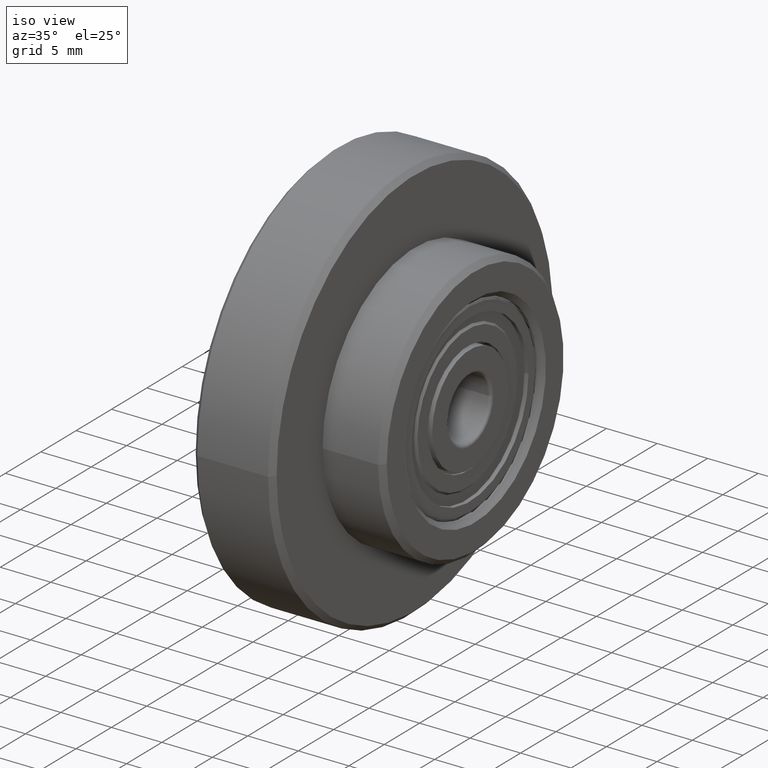
[diagram: clean part render]
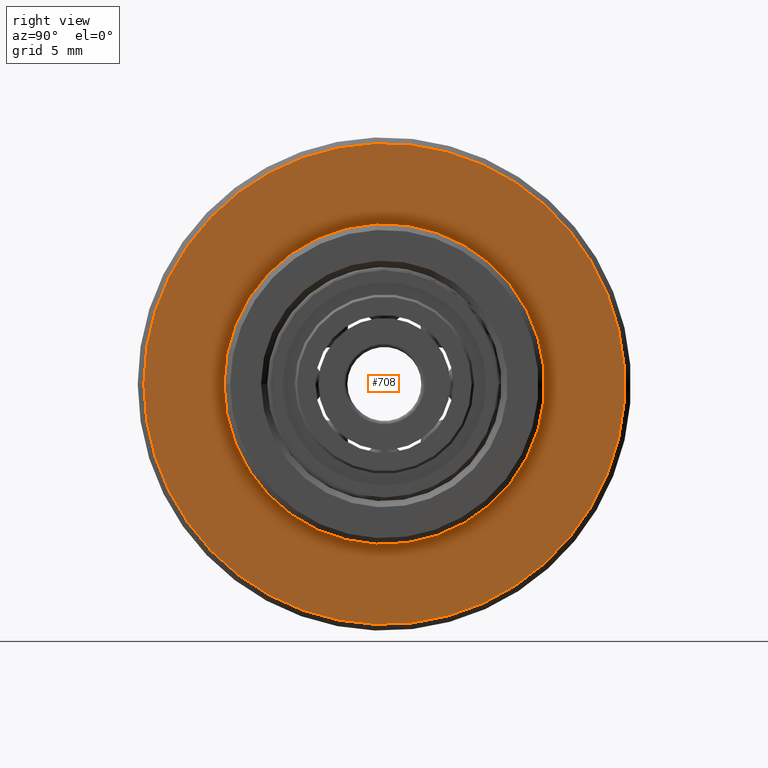
[diagram: tour spotlight — one face highlighted and labeled with its STEP entity id]
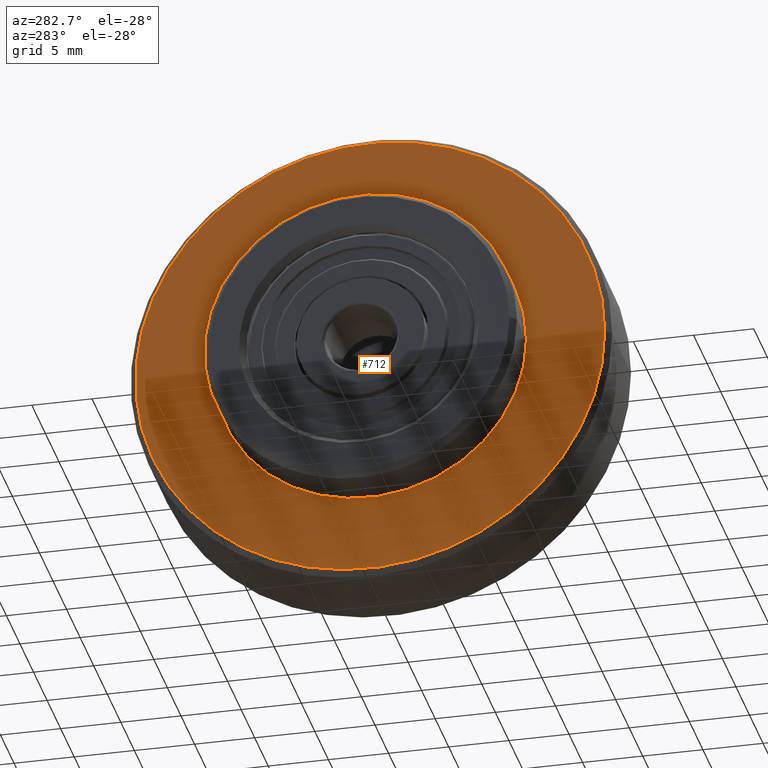
[diagram: tour spotlight — one face highlighted and labeled with its STEP entity id]
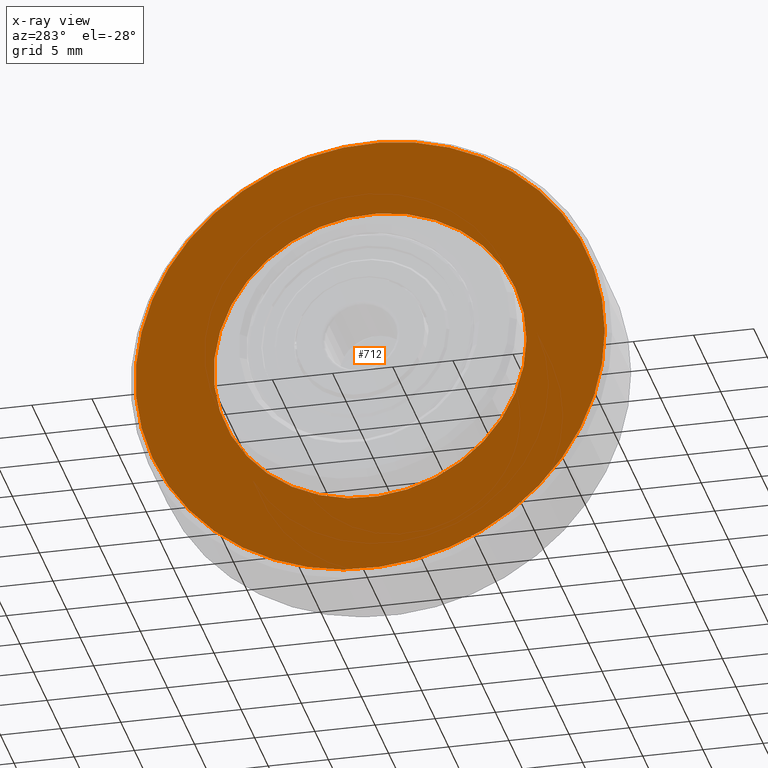
[diagram: x-ray of the same camera — body ghosted, this tour face saturated]
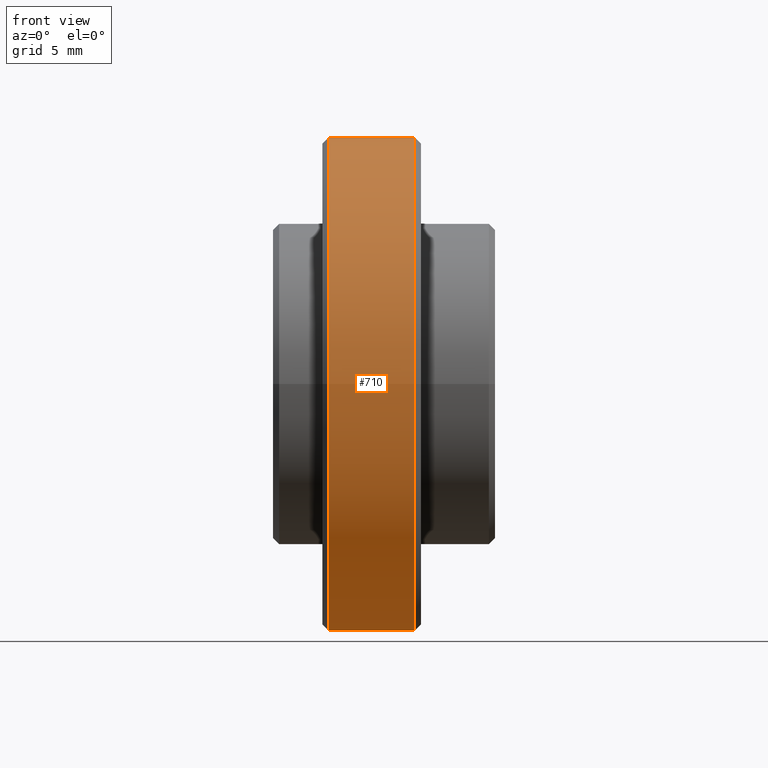
[diagram: tour spotlight — one face highlighted and labeled with its STEP entity id]
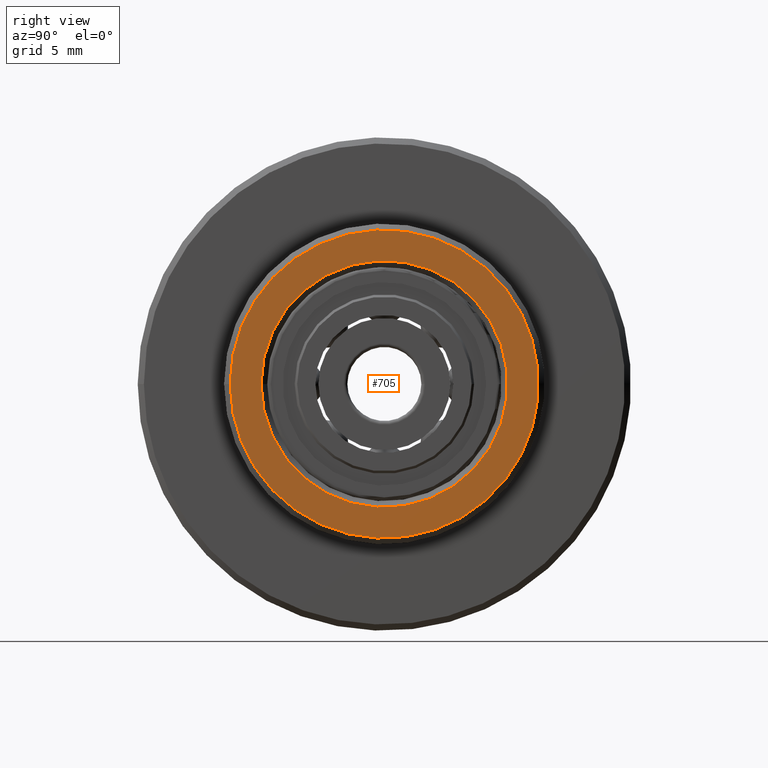
[diagram: tour spotlight — one face highlighted and labeled with its STEP entity id]
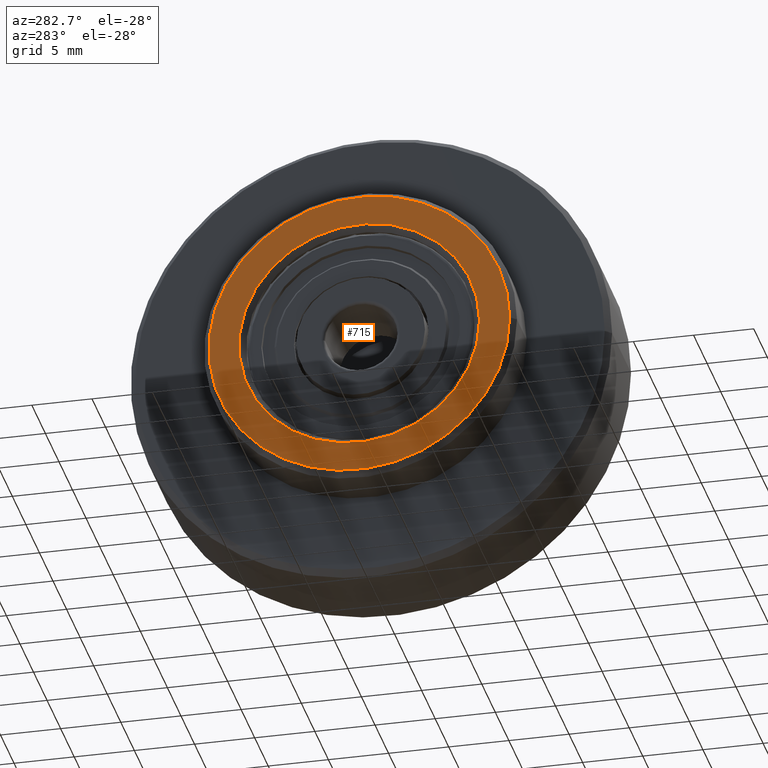
[diagram: tour spotlight — one face highlighted and labeled with its STEP entity id]
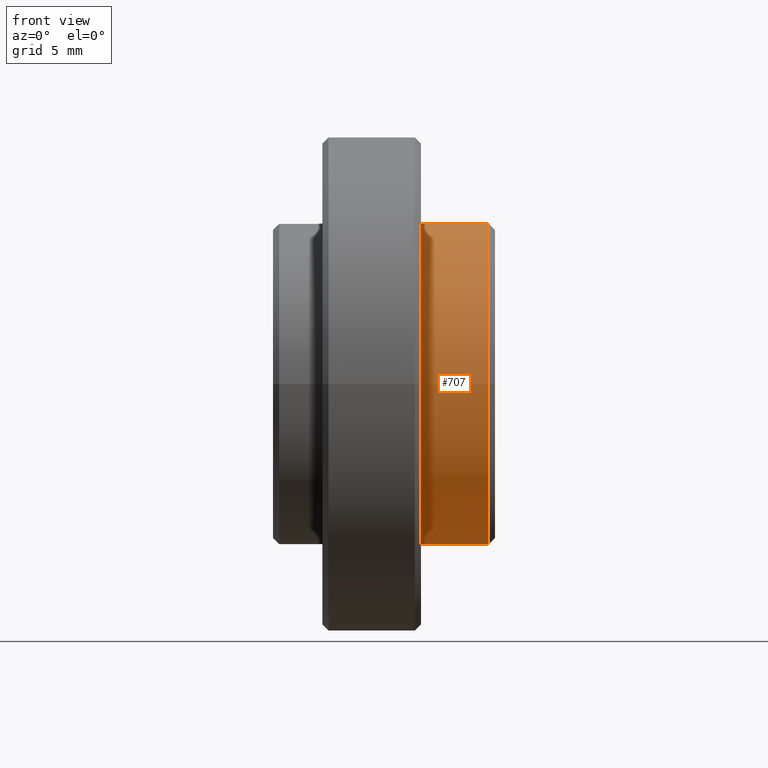
[diagram: tour spotlight — one face highlighted and labeled with its STEP entity id]
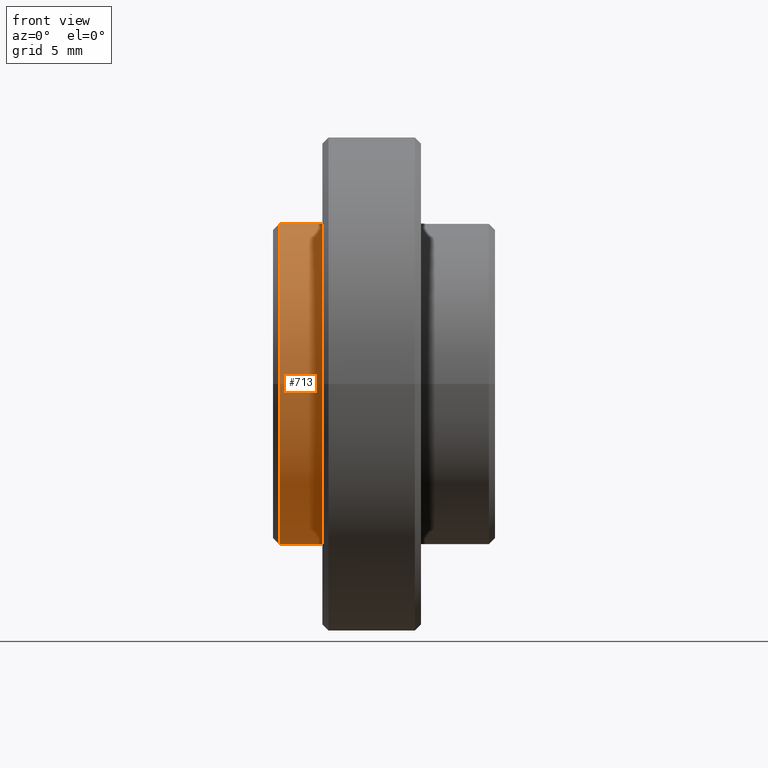
[diagram: tour spotlight — one face highlighted and labeled with its STEP entity id]
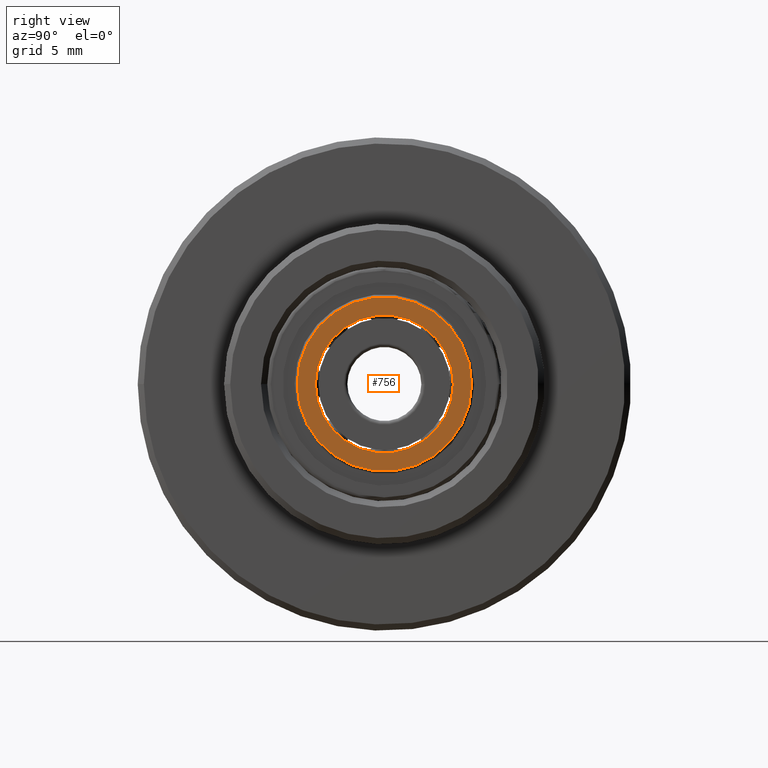
[diagram: tour spotlight — one face highlighted and labeled with its STEP entity id]
A machine part: a face-by-face anatomy tour. The part has 114 B-rep faces; the first image is the clean iso view, then the 8 largest visible faces are spotlighted one at a time (largest first), each with its STEP entity span.

Face 1 — right view, entity #708. In plain terms, the highlighted planar face has unit normal (-1, 0, 0).
Definition (entity closure, byte-faithful):
#104=FACE_BOUND('',#232,.T.);
#168=FACE_OUTER_BOUND('',#231,.T.);
#231=EDGE_LOOP('',(#561));
#232=EDGE_LOOP('',(#562));
#352=CIRCLE('',#806,12.999999999948);
#353=CIRCLE('',#808,19.499999999922);
#418=VERTEX_POINT('',#1223);
#419=VERTEX_POINT('',#1226);
#492=EDGE_CURVE('',#418,#418,#352,.T.);
#493=EDGE_CURVE('',#419,#419,#353,.T.);
#561=ORIENTED_EDGE('',*,*,#493,.T.);
#562=ORIENTED_EDGE('',*,*,#492,.F.);
#688=PLANE('',#807);
#708=ADVANCED_FACE('',(#168,#104),#688,.F.);
#806=AXIS2_PLACEMENT_3D('',#1224,#951,#952);
#807=AXIS2_PLACEMENT_3D('',#1225,#953,#954);
#808=AXIS2_PLACEMENT_3D('',#1227,#955,#956);
#951=DIRECTION('center_axis',(1.,0.,0.));
#952=DIRECTION('ref_axis',(0.,1.,0.));
#953=DIRECTION('center_axis',(-1.,0.,0.));
#954=DIRECTION('ref_axis',(0.,0.,1.));
#955=DIRECTION('center_axis',(1.,0.,0.));
#956=DIRECTION('ref_axis',(0.,1.,0.));
#1223=CARTESIAN_POINT('',(-5.99999999997601,-12.999999999948,0.));
#1224=CARTESIAN_POINT('Origin',(-5.99999999997601,0.,0.));
#1225=CARTESIAN_POINT('Origin',(-5.99999999997601,-38.999999999844,-38.999999999844));
#1226=CARTESIAN_POINT('',(-5.99999999997601,-19.499999999922,0.));
#1227=CARTESIAN_POINT('Origin',(-5.99999999997601,0.,0.));

Face 2 — auxiliary view, entity #712. An x-ray twin of the same camera follows (body ghosted, this face saturated) — the face is partly hidden behind the body. In plain terms, the highlighted planar face has unit normal (1, 0, 0).
Definition (entity closure, byte-faithful):
#108=FACE_BOUND('',#240,.T.);
#172=FACE_OUTER_BOUND('',#239,.T.);
#239=EDGE_LOOP('',(#569));
#240=EDGE_LOOP('',(#570));
#356=CIRCLE('',#814,19.499999999922);
#357=CIRCLE('',#816,12.999999999948);
#422=VERTEX_POINT('',#1235);
#423=VERTEX_POINT('',#1238);
#496=EDGE_CURVE('',#422,#422,#356,.T.);
#497=EDGE_CURVE('',#423,#423,#357,.T.);
#569=ORIENTED_EDGE('',*,*,#496,.F.);
#570=ORIENTED_EDGE('',*,*,#497,.T.);
#689=PLANE('',#815);
#712=ADVANCED_FACE('',(#172,#108),#689,.F.);
#814=AXIS2_PLACEMENT_3D('',#1236,#967,#968);
#815=AXIS2_PLACEMENT_3D('',#1237,#969,#970);
#816=AXIS2_PLACEMENT_3D('',#1239,#971,#972);
#967=DIRECTION('center_axis',(1.,0.,0.));
#968=DIRECTION('ref_axis',(0.,1.,0.));
#969=DIRECTION('center_axis',(1.,0.,0.));
#970=DIRECTION('ref_axis',(0.,0.,-1.));
#971=DIRECTION('center_axis',(1.,0.,0.));
#972=DIRECTION('ref_axis',(0.,1.,0.));
#1235=CARTESIAN_POINT('',(-13.999999999944,-19.499999999922,0.));
#1236=CARTESIAN_POINT('Origin',(-13.999999999944,0.,0.));
#1237=CARTESIAN_POINT('Origin',(-13.999999999944,38.9999999998439,-38.999999999844));
#1238=CARTESIAN_POINT('',(-13.999999999944,-12.999999999948,0.));
#1239=CARTESIAN_POINT('Origin',(-13.999999999944,0.,0.));

Face 3 — front view, entity #710. In plain terms, the highlighted cylindrical surface (bore or boss wall) has radius 20 mm, axis along (1, 0, 0).
Definition (entity closure, byte-faithful):
#72=CYLINDRICAL_SURFACE('',#811,19.99999999992);
#106=FACE_BOUND('',#236,.T.);
#170=FACE_OUTER_BOUND('',#235,.T.);
#235=EDGE_LOOP('',(#565));
#236=EDGE_LOOP('',(#566));
#354=CIRCLE('',#810,19.99999999992);
#355=CIRCLE('',#812,19.99999999992);
#420=VERTEX_POINT('',#1229);
#421=VERTEX_POINT('',#1232);
#494=EDGE_CURVE('',#420,#420,#354,.T.);
#495=EDGE_CURVE('',#421,#421,#355,.T.);
#565=ORIENTED_EDGE('',*,*,#495,.T.);
#566=ORIENTED_EDGE('',*,*,#494,.F.);
#710=ADVANCED_FACE('',(#170,#106),#72,.T.);
#810=AXIS2_PLACEMENT_3D('',#1230,#959,#960);
#811=AXIS2_PLACEMENT_3D('',#1231,#961,#962);
#812=AXIS2_PLACEMENT_3D('',#1233,#963,#964);
#959=DIRECTION('center_axis',(1.,0.,0.));
#960=DIRECTION('ref_axis',(0.,1.,0.));
#961=DIRECTION('center_axis',(1.,0.,0.));
#962=DIRECTION('ref_axis',(0.,1.,0.));
#963=DIRECTION('center_axis',(1.,0.,0.));
#964=DIRECTION('ref_axis',(0.,1.,0.));
#1229=CARTESIAN_POINT('',(-6.49999999997402,-19.99999999992,0.));
#1230=CARTESIAN_POINT('Origin',(-6.49999999997402,0.,0.));
#1231=CARTESIAN_POINT('Origin',(-6.49999999997402,0.,0.));
#1232=CARTESIAN_POINT('',(-13.499999999946,-19.99999999992,0.));
#1233=CARTESIAN_POINT('Origin',(-13.499999999946,0.,0.));

Face 4 — right view, entity #705. In plain terms, the highlighted planar face has unit normal (-1, 0, 0).
Definition (entity closure, byte-faithful):
#101=FACE_BOUND('',#226,.T.);
#165=FACE_OUTER_BOUND('',#225,.T.);
#225=EDGE_LOOP('',(#555));
#226=EDGE_LOOP('',(#556));
#349=CIRCLE('',#801,12.49999999995);
#350=CIRCLE('',#802,9.99999999996);
#415=VERTEX_POINT('',#1215);
#416=VERTEX_POINT('',#1217);
#489=EDGE_CURVE('',#415,#415,#349,.T.);
#490=EDGE_CURVE('',#416,#416,#350,.T.);
#555=ORIENTED_EDGE('',*,*,#489,.T.);
#556=ORIENTED_EDGE('',*,*,#490,.F.);
#687=PLANE('',#800);
#705=ADVANCED_FACE('',(#165,#101),#687,.F.);
#800=AXIS2_PLACEMENT_3D('',#1214,#939,#940);
#801=AXIS2_PLACEMENT_3D('',#1216,#941,#942);
#802=AXIS2_PLACEMENT_3D('',#1218,#943,#944);
#939=DIRECTION('center_axis',(-1.,0.,0.));
#940=DIRECTION('ref_axis',(0.,0.,1.));
#941=DIRECTION('center_axis',(1.,0.,0.));
#942=DIRECTION('ref_axis',(0.,1.,0.));
#943=DIRECTION('center_axis',(1.,0.,0.));
#944=DIRECTION('ref_axis',(0.,1.,0.));
#1214=CARTESIAN_POINT('Origin',(0.,-24.9999999998999,-24.9999999998999));
#1215=CARTESIAN_POINT('',(0.,-12.49999999995,0.));
#1216=CARTESIAN_POINT('Origin',(0.,0.,0.));
#1217=CARTESIAN_POINT('',(0.,-9.99999999996,0.));
#1218=CARTESIAN_POINT('Origin',(0.,0.,0.));

Face 5 — auxiliary view, entity #715. In plain terms, the highlighted planar face has unit normal (1, 0, 0).
Definition (entity closure, byte-faithful):
#111=FACE_BOUND('',#246,.T.);
#175=FACE_OUTER_BOUND('',#245,.T.);
#245=EDGE_LOOP('',(#575));
#246=EDGE_LOOP('',(#576));
#359=CIRCLE('',#820,12.49999999995);
#360=CIRCLE('',#822,9.99999999995997);
#425=VERTEX_POINT('',#1244);
#426=VERTEX_POINT('',#1247);
#499=EDGE_CURVE('',#425,#425,#359,.T.);
#500=EDGE_CURVE('',#426,#426,#360,.T.);
#575=ORIENTED_EDGE('',*,*,#499,.F.);
#576=ORIENTED_EDGE('',*,*,#500,.T.);
#690=PLANE('',#821);
#715=ADVANCED_FACE('',(#175,#111),#690,.F.);
#820=AXIS2_PLACEMENT_3D('',#1245,#979,#980);
#821=AXIS2_PLACEMENT_3D('',#1246,#981,#982);
#822=AXIS2_PLACEMENT_3D('',#1248,#983,#984);
#979=DIRECTION('center_axis',(1.,0.,0.));
#980=DIRECTION('ref_axis',(0.,1.,0.));
#981=DIRECTION('center_axis',(1.,0.,0.));
#982=DIRECTION('ref_axis',(0.,0.,-1.));
#983=DIRECTION('center_axis',(1.,0.,0.));
#984=DIRECTION('ref_axis',(0.,1.,0.));
#1244=CARTESIAN_POINT('',(-17.999999999928,-12.49999999995,0.));
#1245=CARTESIAN_POINT('Origin',(-17.999999999928,0.,0.));
#1246=CARTESIAN_POINT('Origin',(-17.999999999928,24.9999999999001,-24.9999999999001));
#1247=CARTESIAN_POINT('',(-17.999999999928,-9.99999999995997,0.));
#1248=CARTESIAN_POINT('Origin',(-17.999999999928,0.,0.));

Face 6 — front view, entity #707. In plain terms, the highlighted cylindrical surface (bore or boss wall) has radius 13 mm, axis along (1, 0, 0).
Definition (entity closure, byte-faithful):
#71=CYLINDRICAL_SURFACE('',#805,12.999999999948);
#103=FACE_BOUND('',#230,.T.);
#167=FACE_OUTER_BOUND('',#229,.T.);
#229=EDGE_LOOP('',(#559));
#230=EDGE_LOOP('',(#560));
#351=CIRCLE('',#804,12.999999999948);
#352=CIRCLE('',#806,12.999999999948);
#417=VERTEX_POINT('',#1220);
#418=VERTEX_POINT('',#1223);
#491=EDGE_CURVE('',#417,#417,#351,.T.);
#492=EDGE_CURVE('',#418,#418,#352,.T.);
#559=ORIENTED_EDGE('',*,*,#492,.T.);
#560=ORIENTED_EDGE('',*,*,#491,.F.);
#707=ADVANCED_FACE('',(#167,#103),#71,.T.);
#804=AXIS2_PLACEMENT_3D('',#1221,#947,#948);
#805=AXIS2_PLACEMENT_3D('',#1222,#949,#950);
#806=AXIS2_PLACEMENT_3D('',#1224,#951,#952);
#947=DIRECTION('center_axis',(1.,0.,0.));
#948=DIRECTION('ref_axis',(0.,1.,0.));
#949=DIRECTION('center_axis',(1.,0.,0.));
#950=DIRECTION('ref_axis',(0.,1.,0.));
#951=DIRECTION('center_axis',(1.,0.,0.));
#952=DIRECTION('ref_axis',(0.,1.,0.));
#1220=CARTESIAN_POINT('',(-0.499999999997954,-12.999999999948,0.));
#1221=CARTESIAN_POINT('Origin',(-0.499999999997954,0.,0.));
#1222=CARTESIAN_POINT('Origin',(-0.499999999997954,0.,0.));
#1223=CARTESIAN_POINT('',(-5.99999999997601,-12.999999999948,0.));
#1224=CARTESIAN_POINT('Origin',(-5.99999999997601,0.,0.));

Face 7 — front view, entity #713. In plain terms, the highlighted cylindrical surface (bore or boss wall) has radius 13 mm, axis along (1, 0, 0).
Definition (entity closure, byte-faithful):
#73=CYLINDRICAL_SURFACE('',#817,12.999999999948);
#109=FACE_BOUND('',#242,.T.);
#173=FACE_OUTER_BOUND('',#241,.T.);
#241=EDGE_LOOP('',(#571));
#242=EDGE_LOOP('',(#572));
#357=CIRCLE('',#816,12.999999999948);
#358=CIRCLE('',#818,12.999999999948);
#423=VERTEX_POINT('',#1238);
#424=VERTEX_POINT('',#1241);
#497=EDGE_CURVE('',#423,#423,#357,.T.);
#498=EDGE_CURVE('',#424,#424,#358,.T.);
#571=ORIENTED_EDGE('',*,*,#498,.T.);
#572=ORIENTED_EDGE('',*,*,#497,.F.);
#713=ADVANCED_FACE('',(#173,#109),#73,.T.);
#816=AXIS2_PLACEMENT_3D('',#1239,#971,#972);
#817=AXIS2_PLACEMENT_3D('',#1240,#973,#974);
#818=AXIS2_PLACEMENT_3D('',#1242,#975,#976);
#971=DIRECTION('center_axis',(1.,0.,0.));
#972=DIRECTION('ref_axis',(0.,1.,0.));
#973=DIRECTION('center_axis',(1.,0.,0.));
#974=DIRECTION('ref_axis',(0.,1.,0.));
#975=DIRECTION('center_axis',(1.,0.,0.));
#976=DIRECTION('ref_axis',(0.,1.,0.));
#1238=CARTESIAN_POINT('',(-13.999999999944,-12.999999999948,0.));
#1239=CARTESIAN_POINT('Origin',(-13.999999999944,0.,0.));
#1240=CARTESIAN_POINT('Origin',(-13.999999999944,0.,0.));
#1241=CARTESIAN_POINT('',(-17.49999999993,-12.999999999948,0.));
#1242=CARTESIAN_POINT('Origin',(-17.49999999993,0.,0.));

Face 8 — right view, entity #756. In plain terms, the highlighted planar face has unit normal (1, 0, -0).
Definition (entity closure, byte-faithful):
#157=FACE_BOUND('',#327,.T.);
#210=FACE_OUTER_BOUND('',#326,.T.);
#326=EDGE_LOOP('',(#657));
#327=EDGE_LOOP('',(#658));
#400=CIRCLE('',#903,5.59);
#401=CIRCLE('',#905,7.075);
#467=VERTEX_POINT('',#1369);
#468=VERTEX_POINT('',#1372);
#540=EDGE_CURVE('',#467,#467,#400,.T.);
#541=EDGE_CURVE('',#468,#468,#401,.T.);
#657=ORIENTED_EDGE('',*,*,#541,.F.);
#658=ORIENTED_EDGE('',*,*,#540,.T.);
#703=PLANE('',#904);
#756=ADVANCED_FACE('',(#210,#157),#703,.T.);
#903=AXIS2_PLACEMENT_3D('',#1370,#1145,#1146);
#904=AXIS2_PLACEMENT_3D('',#1371,#1147,#1148);
#905=AXIS2_PLACEMENT_3D('',#1373,#1149,#1150);
#1145=DIRECTION('center_axis',(1.,0.,0.));
#1146=DIRECTION('ref_axis',(0.,1.,0.));
#1147=DIRECTION('center_axis',(-1.,0.,0.));
#1148=DIRECTION('ref_axis',(0.,0.,1.));
#1149=DIRECTION('center_axis',(1.,0.,0.));
#1150=DIRECTION('ref_axis',(0.,1.,0.));
#1369=CARTESIAN_POINT('',(0.26,5.59,0.));
#1370=CARTESIAN_POINT('Origin',(0.26,0.,0.));
#1371=CARTESIAN_POINT('Origin',(0.26,6.3325,0.));
#1372=CARTESIAN_POINT('',(0.26,7.075,0.));
#1373=CARTESIAN_POINT('Origin',(0.26,0.,0.));